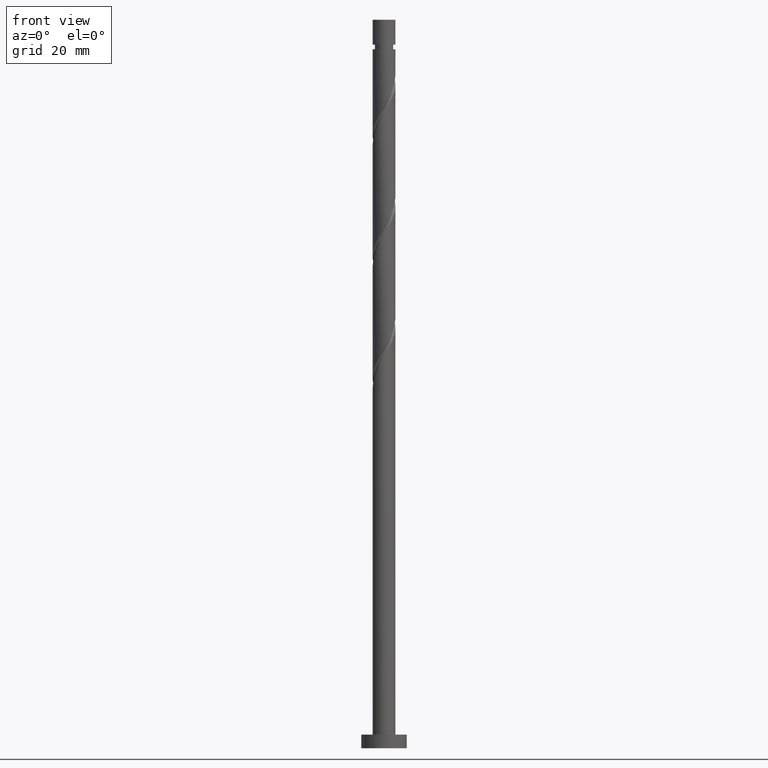
[diagram: clean part render]
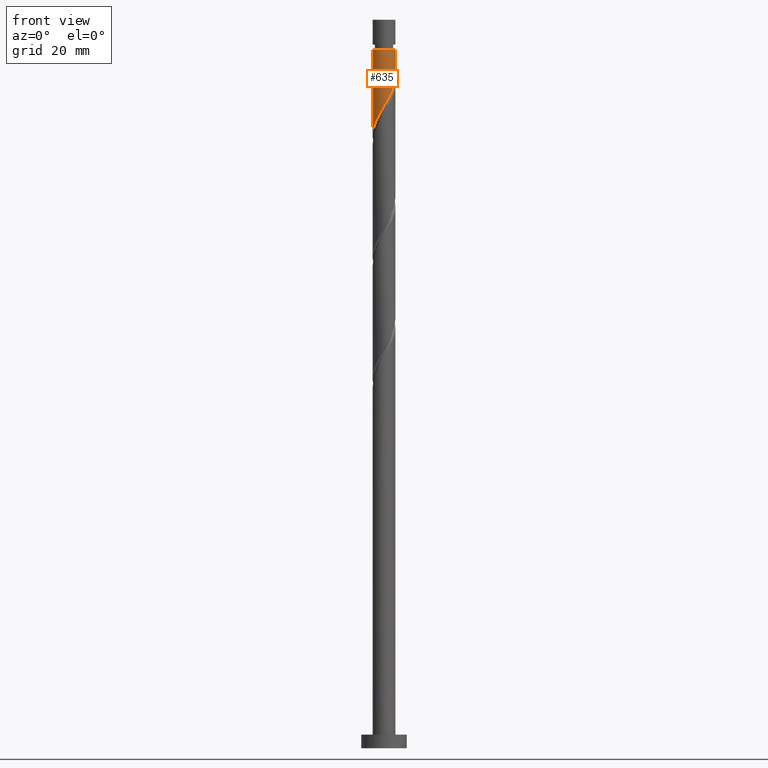
[diagram: same view with one face highlighted and labeled with its STEP entity id]
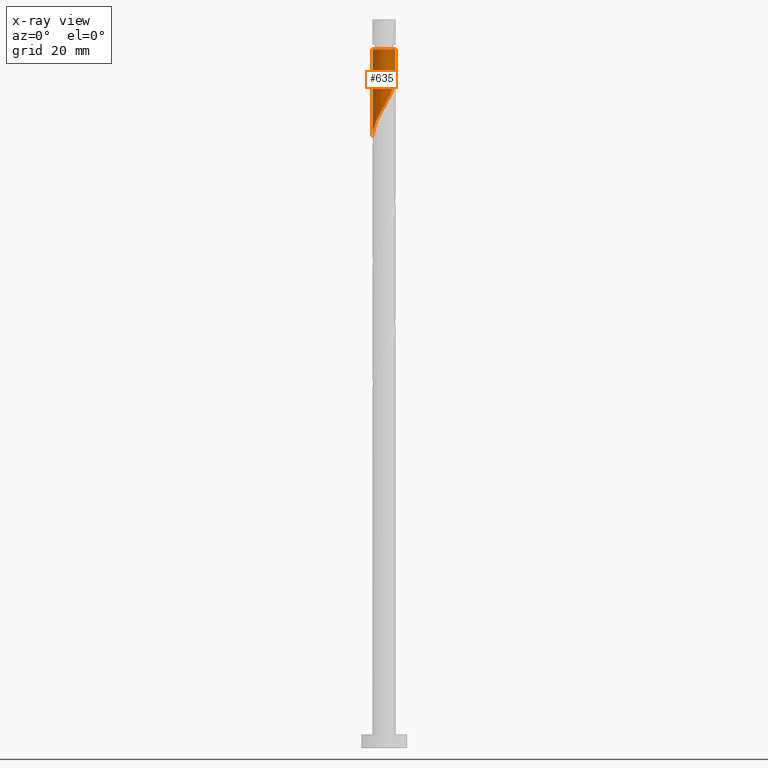
[diagram: x-ray of the same camera — body ghosted, the highlighted face saturated]
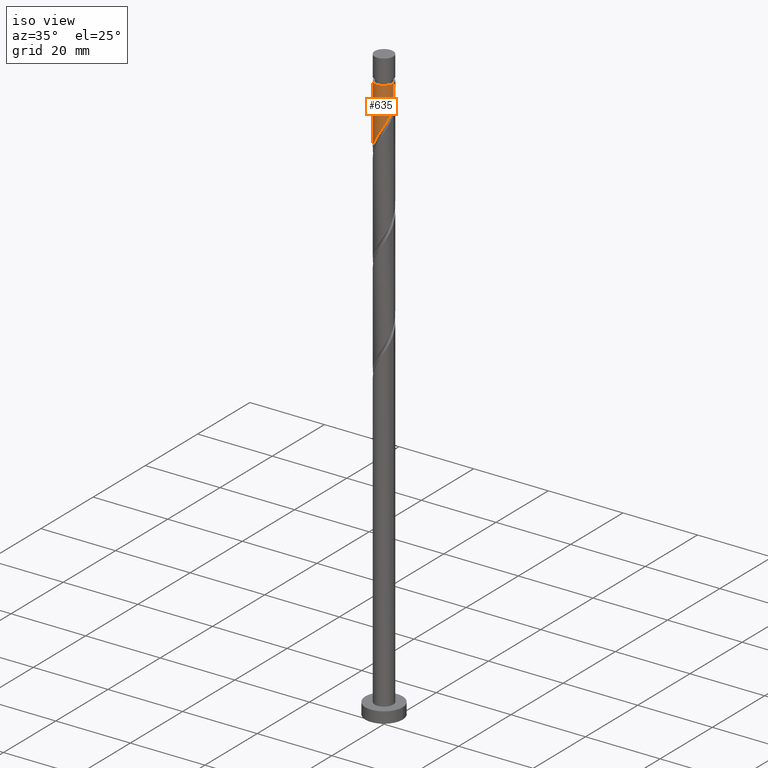
[diagram: same view with one face highlighted and labeled with its STEP entity id]
A machine part, front view. The second image highlights one B-rep face of the part: STEP entity #635.
The next image is the same camera in x-ray: the body ghosted, the highlighted face saturated — about 0% of this face is hidden behind the body in this view.
A second angle (iso view) of the same face is appended — the face is thin or edge-on in the first view.
In plain terms, the highlighted cylindrical surface (edge-blend (fillet) strip) has radius 2.5 mm, axis along (-0, -0, -1).
Its self-contained STEP definition (entity closure, byte-faithful):
#42 = CARTESIAN_POINT ( 'NONE',  ( 2.233329684002602900, -1.179593048026942315, 145.6365266329411554 ) ) ;
#43 = DIRECTION ( 'NONE',  ( -0.000000000000000000, -0.000000000000000000, -1.000000000000000000 ) ) ;
#53 = LINE ( 'NONE', #557, #1462 ) ;
#60 = CARTESIAN_POINT ( 'NONE',  ( 0.2129030368922521788, -2.490917962696093113, 141.3941023905169629 ) ) ;
#62 = DIRECTION ( 'NONE',  ( -0.000000000000000000, -0.000000000000000000, -1.000000000000000000 ) ) ;
#100 = EDGE_CURVE ( 'NONE', #818, #859, #53, .T. ) ;
#121 = EDGE_CURVE ( 'NONE', #1086, #630, #1260, .T. ) ;
#133 = CARTESIAN_POINT ( 'NONE',  ( 2.500000000000000000, 3.440068761804176987E-16, 147.6981023243633331 ) ) ;
#158 = CARTESIAN_POINT ( 'NONE',  ( 2.500000000000000444, 3.440068761804176987E-16, 147.6981023243633331 ) ) ;
#165 =( BOUNDED_CURVE ( )  B_SPLINE_CURVE ( 2, ( #133, #633, #1233, #1359, #1209, #42, #290, #690, #1216, #326, #957, #1580, #60, #546, #572, #842, #429, #671, #1465, #564, #423, #300, #965, #1600, #200 ),
 .UNSPECIFIED., .F., .T. ) 
 B_SPLINE_CURVE_WITH_KNOTS ( ( 3, 2, 2, 2, 2, 2, 2, 2, 2, 2, 2, 2, 3 ),
 ( 0.3045252162417514397, 0.3068181818181818232, 0.3181818181818181768, 0.3295454545454545303, 0.3409090909090908839, 0.3522727272727272929, 0.3636363636363636465, 0.3750000000000000000, 0.3863636363636363535, 0.3977272727272727071, 0.4090909090909091161, 0.4204545454545454697, 0.4295252162417516062 ),
 .UNSPECIFIED. ) 
 CURVE ( )  GEOMETRIC_REPRESENTATION_ITEM ( )  RATIONAL_B_SPLINE_CURVE ( ( 0.9061101570135601246, 0.9072237824201422329, 0.9090909090909196077, 0.8998376744372220681, 0.9090909090909196077, 0.8998376744372220681, 0.9090909090909196077, 0.8998376744372220681, 0.9090909090909196077, 0.8998376744372220681, 0.9090909090909196077, 0.8998376744372220681, 0.9090909090909196077, 0.8998376744372220681, 0.9090909090909196077, 0.8998376744372220681, 0.9090909090909196077, 0.8998376744372220681, 0.9090909090909196077, 0.8998376744372220681, 0.9090909090909196077, 0.8998376744372220681, 0.9090909090909196077, 0.9017048011079993319, 0.9061101570135603467 ) ) 
 REPRESENTATION_ITEM ( '' )  );
#167 = CARTESIAN_POINT ( 'NONE',  ( 0.000000000000000000, 0.000000000000000000, 153.5153145117290876 ) ) ;
#200 = CARTESIAN_POINT ( 'NONE',  ( -2.500000000000000888, 6.094904436674791625E-15, 134.3647689910299619 ) ) ;
#290 = CARTESIAN_POINT ( 'NONE',  ( 2.021932029057389890, -1.470302985738608958, 145.0304660268806174 ) ) ;
#291 = CYLINDRICAL_SURFACE ( 'NONE', #1029, 2.500000000000000000 ) ;
#300 = CARTESIAN_POINT ( 'NONE',  ( -2.353996859965338917, -0.9153687888900170488, 135.9395569359714955 ) ) ;
#301 = AXIS2_PLACEMENT_3D ( 'NONE', #167, #43, #1581 ) ;
#326 = CARTESIAN_POINT ( 'NONE',  ( 1.241060336893708538, -2.199766004962784738, 143.2122842086988044 ) ) ;
#367 = ORIENTED_EDGE ( 'NONE', *, *, #100, .T. ) ;
#423 = CARTESIAN_POINT ( 'NONE',  ( -2.177375558832922664, -1.228428132125366723, 136.5456175420321188 ) ) ;
#429 = CARTESIAN_POINT ( 'NONE',  ( -1.167586491630751899, -2.210597608014944093, 138.9698599662745266 ) ) ;
#543 = CARTESIAN_POINT ( 'NONE',  ( -2.499999999999993339, 0.000000000000000000, 153.5153145117290876 ) ) ;
#546 = CARTESIAN_POINT ( 'NONE',  ( -0.1452368982656266350, -2.521528798126810411, 140.7880417844563397 ) ) ;
#547 = CARTESIAN_POINT ( 'NONE',  ( 0.000000000000000000, 0.000000000000000000, 160.0000000000000000 ) ) ;
#557 = CARTESIAN_POINT ( 'NONE',  ( -2.500000000000000000, 0.000000000000000000, 160.0000000000000000 ) ) ;
#564 = CARTESIAN_POINT ( 'NONE',  ( -2.000754257700505967, -1.541487475360715065, 137.1516781480927420 ) ) ;
#572 = CARTESIAN_POINT ( 'NONE',  ( -0.4974937185533109263, -2.449999999999999289, 140.1819811783958016 ) ) ;
#630 = VERTEX_POINT ( 'NONE', #158 ) ;
#633 = CARTESIAN_POINT ( 'NONE',  ( 2.500000000000000000, -0.07193881630955993589, 147.5760043196450795 ) ) ;
#635 = ADVANCED_FACE ( 'NONE', ( #1057 ), #291, .T. ) ;
#652 = EDGE_CURVE ( 'NONE', #1086, #818, #897, .T. ) ;
#671 = CARTESIAN_POINT ( 'NONE',  ( -1.485422444420509747, -2.042724014156697798, 138.3637993602139318 ) ) ;
#690 = CARTESIAN_POINT ( 'NONE',  ( 1.810534374112177547, -1.761012923450274714, 144.4244054208199941 ) ) ;
#803 = DIRECTION ( 'NONE',  ( -0.000000000000000000, -0.000000000000000000, -1.000000000000000000 ) ) ;
#808 = CARTESIAN_POINT ( 'NONE',  ( -2.500000000000000888, 6.094904436674791625E-15, 134.3647689910299619 ) ) ;
#818 = VERTEX_POINT ( 'NONE', #543 ) ;
#842 = CARTESIAN_POINT ( 'NONE',  ( -0.8497505388409954952, -2.378471201873189500, 139.5759205723351499 ) ) ;
#859 = VERTEX_POINT ( 'NONE', #808 ) ;
#878 = DIRECTION ( 'NONE',  ( -0.000000000000000000, -0.000000000000000000, -1.000000000000000000 ) ) ;
#897 = CIRCLE ( 'NONE', #301, 2.499999999999993339 ) ;
#949 = VECTOR ( 'NONE', #878, 1000.000000000000000 ) ;
#957 = CARTESIAN_POINT ( 'NONE',  ( 0.9060516544719198206, -2.330036566114079832, 142.6062236026381527 ) ) ;
#965 = CARTESIAN_POINT ( 'NONE',  ( -2.435264748179750693, -0.5652305779706341404, 135.3334963299108722 ) ) ;
#1029 = AXIS2_PLACEMENT_3D ( 'NONE', #547, #803, #1427 ) ;
#1054 = CARTESIAN_POINT ( 'NONE',  ( 2.499999999999993339, 3.061616997868378704E-16, 153.5153145117290876 ) ) ;
#1057 = FACE_OUTER_BOUND ( 'NONE', #1249, .T. ) ;
#1086 = VERTEX_POINT ( 'NONE', #1054 ) ;
#1132 = CARTESIAN_POINT ( 'NONE',  ( 2.500000000000000000, 3.061616997868383141E-16, 160.0000000000000000 ) ) ;
#1139 = ORIENTED_EDGE ( 'NONE', *, *, #121, .F. ) ;
#1206 = ORIENTED_EDGE ( 'NONE', *, *, #1379, .F. ) ;
#1209 = CARTESIAN_POINT ( 'NONE',  ( 2.354261794510395411, -0.8411013035946938166, 146.2425872390018355 ) ) ;
#1216 = CARTESIAN_POINT ( 'NONE',  ( 1.525797355502942043, -1.980389464206530725, 143.8183448147593992 ) ) ;
#1233 = CARTESIAN_POINT ( 'NONE',  ( 2.495863270706175197, -0.1437585960555969600, 147.4547084511230537 ) ) ;
#1249 = EDGE_LOOP ( 'NONE', ( #1139, #1325, #367, #1206 ) ) ;
#1260 = LINE ( 'NONE', #1132, #949 ) ;
#1325 = ORIENTED_EDGE ( 'NONE', *, *, #652, .T. ) ;
#1359 = CARTESIAN_POINT ( 'NONE',  ( 2.475193905018187035, -0.5026095591624447634, 146.8486478450623736 ) ) ;
#1379 = EDGE_CURVE ( 'NONE', #630, #859, #165, .T. ) ;
#1427 = DIRECTION ( 'NONE',  ( -1.000000000000000000, 0.000000000000000000, 0.000000000000000000 ) ) ;
#1462 = VECTOR ( 'NONE', #62, 1000.000000000000000 ) ;
#1465 = CARTESIAN_POINT ( 'NONE',  ( -1.743088351060508412, -1.792105744758706987, 137.7577387541533085 ) ) ;
#1580 = CARTESIAN_POINT ( 'NONE',  ( 0.5710429720501321027, -2.460307127265375371, 142.0001629965775862 ) ) ;
#1581 = DIRECTION ( 'NONE',  ( -1.000000000000000000, 0.000000000000000000, 0.000000000000000000 ) ) ;
#1600 = CARTESIAN_POINT ( 'NONE',  ( -2.500000000000001776, -0.2863223184627987083, 134.8507289440012471 ) ) ;